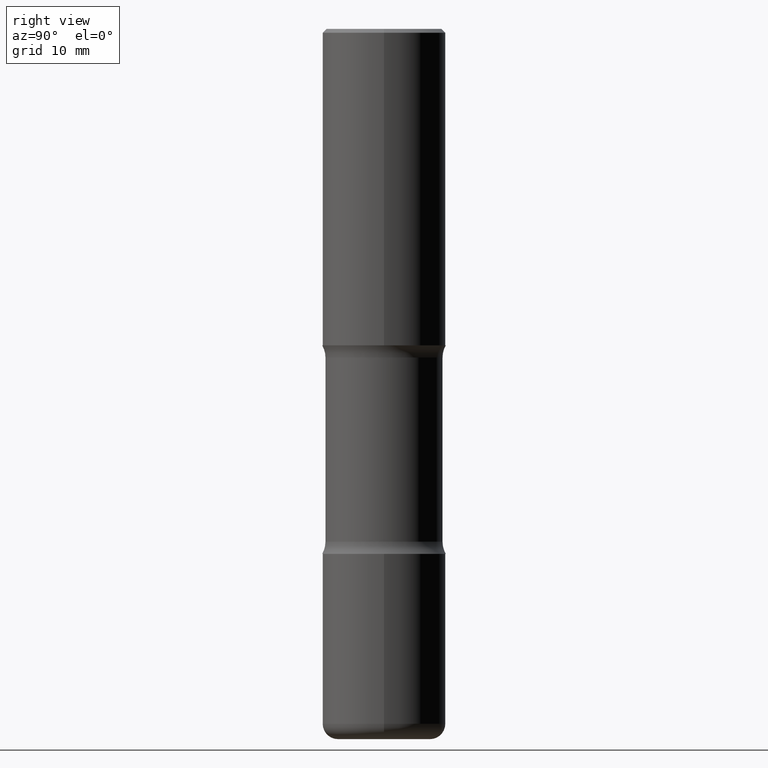
[diagram: clean part render]
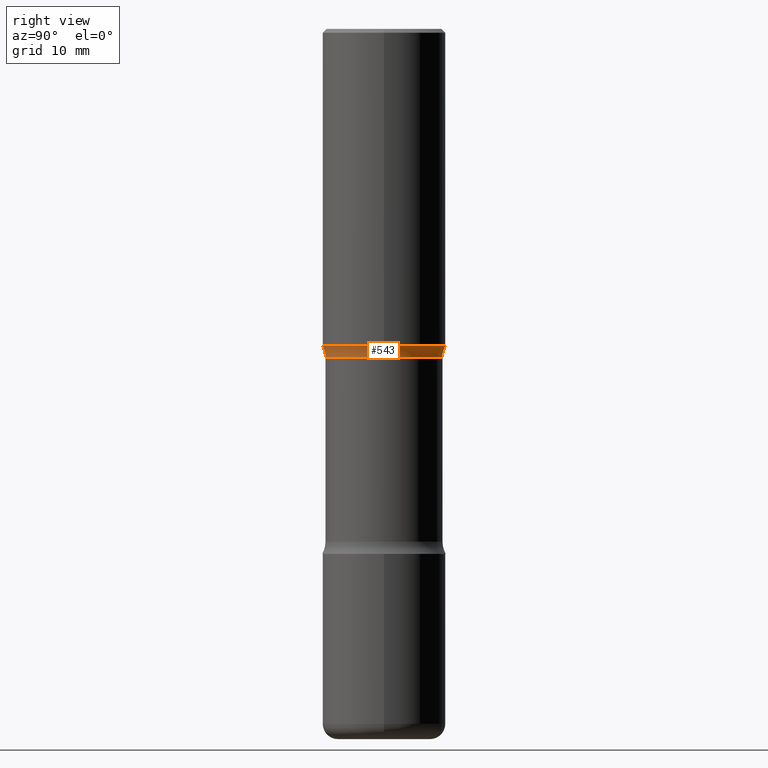
[diagram: same view with one face highlighted and labeled with its STEP entity id]
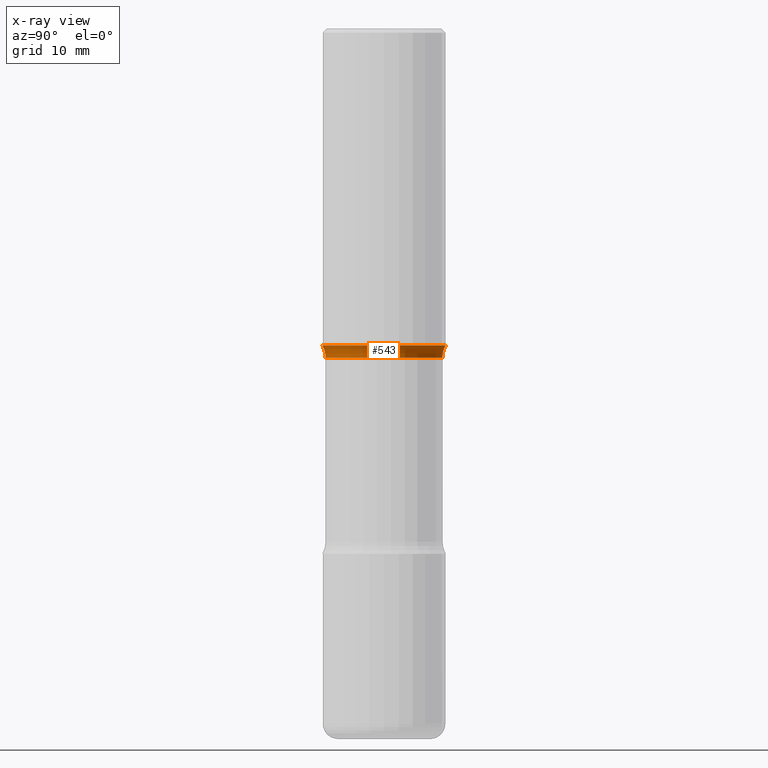
[diagram: x-ray of the same camera — body ghosted, the highlighted face saturated]
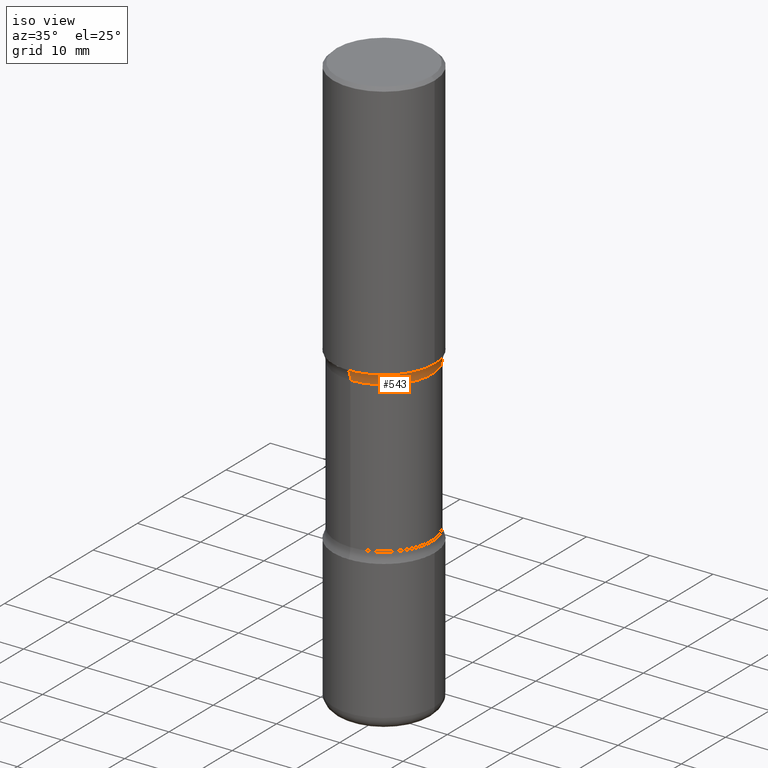
[diagram: same view with one face highlighted and labeled with its STEP entity id]
A machine part, right view. The second image highlights one B-rep face of the part: STEP entity #543.
The next image is the same camera in x-ray: the body ghosted, the highlighted face saturated — about 0% of this face is hidden behind the body in this view.
A second angle (iso view) of the same face is appended — the face is thin or edge-on in the first view.
In plain terms, the highlighted toroidal blend (fillet) surface has major radius 10.7569 mm and minor (blend) radius 3.175 mm.
Its self-contained STEP definition (entity closure, byte-faithful):
#11 = CIRCLE ( 'NONE', #474, 0.3149500000000002298 ) ;
#47 = CIRCLE ( 'NONE', #331, 0.1250000000000000000 ) ;
#88 = CARTESIAN_POINT ( 'NONE',  ( -2.160713844398106286E-15, -0.3149500000000058919, -1.614099999999999424 ) ) ;
#93 = VERTEX_POINT ( 'NONE', #345 ) ;
#96 = EDGE_CURVE ( 'NONE', #93, #282, #287, .T. ) ;
#100 = DIRECTION ( 'NONE',  ( 6.982962677686266711E-15, 1.000000000000000000, -3.660767830705881533E-15 ) ) ;
#130 = EDGE_CURVE ( 'NONE', #435, #93, #181, .T. ) ;
#144 = AXIS2_PLACEMENT_3D ( 'NONE', #263, #150, #540 ) ;
#147 = TOROIDAL_SURFACE ( 'NONE', #312, 0.4234999999999999321, 0.1250000000000000000 ) ;
#150 = DIRECTION ( 'NONE',  ( 1.000000000000000000, -6.860497997771530774E-15, 4.841240155857558238E-29 ) ) ;
#169 = CARTESIAN_POINT ( 'NONE',  ( 4.051117814422036389E-29, -5.920308863460726837E-15, -1.676083042035706239 ) ) ;
#180 = ORIENTED_EDGE ( 'NONE', *, *, #130, .F. ) ;
#181 = CIRCLE ( 'NONE', #190, 0.2984999999999998765 ) ;
#190 = AXIS2_PLACEMENT_3D ( 'NONE', #315, #439, #100 ) ;
#214 = CARTESIAN_POINT ( 'NONE',  ( 3.920484348274944932E-29, -5.673903043124096265E-15, -1.614100000000000312 ) ) ;
#218 = ORIENTED_EDGE ( 'NONE', *, *, #319, .T. ) ;
#233 = CARTESIAN_POINT ( 'NONE',  ( 2.199284095337330103E-15, 0.3149499999999945676, -1.614100000000001423 ) ) ;
#237 = DIRECTION ( 'NONE',  ( -6.982962677686266711E-15, -1.000000000000000000, 0.000000000000000000 ) ) ;
#263 = CARTESIAN_POINT ( 'NONE',  ( -2.905420902056202653E-15, -0.4235000000000058717, -1.676083042035704684 ) ) ;
#282 = VERTEX_POINT ( 'NONE', #88 ) ;
#287 = CIRCLE ( 'NONE', #144, 0.1250000000000000000 ) ;
#295 = VERTEX_POINT ( 'NONE', #233 ) ;
#299 = DIRECTION ( 'NONE',  ( 2.470630472966402250E-29, -3.455448399899237676E-15, -1.000000000000000000 ) ) ;
#312 = AXIS2_PLACEMENT_3D ( 'NONE', #169, #299, #371 ) ;
#315 = CARTESIAN_POINT ( 'NONE',  ( 4.073621540735516440E-29, -5.888082246547263507E-15, -1.676083042035706239 ) ) ;
#319 = EDGE_CURVE ( 'NONE', #435, #295, #47, .T. ) ;
#331 = AXIS2_PLACEMENT_3D ( 'NONE', #420, #457, #237 ) ;
#334 = ORIENTED_EDGE ( 'NONE', *, *, #96, .F. ) ;
#343 = ORIENTED_EDGE ( 'NONE', *, *, #410, .T. ) ;
#345 = CARTESIAN_POINT ( 'NONE',  ( -2.104286248366433550E-15, -0.2985000000000057607, -1.676083042035705128 ) ) ;
#371 = DIRECTION ( 'NONE',  ( 6.982962677686265922E-15, 1.000000000000000000, -3.455448399899237676E-15 ) ) ;
#377 = DIRECTION ( 'NONE',  ( 2.470630472966402250E-29, -3.455448399899237676E-15, -1.000000000000000000 ) ) ;
#410 = EDGE_CURVE ( 'NONE', #295, #282, #11, .T. ) ;
#420 = CARTESIAN_POINT ( 'NONE',  ( 2.957284694000173774E-15, 0.4234999999999939924, -1.676083042035707571 ) ) ;
#421 = FACE_OUTER_BOUND ( 'NONE', #546, .T. ) ;
#435 = VERTEX_POINT ( 'NONE', #551 ) ;
#439 = DIRECTION ( 'NONE',  ( 2.470630472966402250E-29, -3.455448399899237676E-15, -1.000000000000000000 ) ) ;
#457 = DIRECTION ( 'NONE',  ( -1.000000000000000000, 6.982962677686265922E-15, -4.883557194083112340E-29 ) ) ;
#474 = AXIS2_PLACEMENT_3D ( 'NONE', #214, #377, #560 ) ;
#540 = DIRECTION ( 'NONE',  ( 6.860497997771529985E-15, 1.000000000000000000, 0.000000000000000000 ) ) ;
#543 = ADVANCED_FACE ( 'NONE', ( #421 ), #147, .F. ) ;
#546 = EDGE_LOOP ( 'NONE', ( #334, #180, #218, #343 ) ) ;
#551 = CARTESIAN_POINT ( 'NONE',  ( 2.084414359289390435E-15, 0.2984999999999940479, -1.676083042035707127 ) ) ;
#560 = DIRECTION ( 'NONE',  ( 6.982962677686264344E-15, 1.000000000000000000, -3.469564049740290403E-15 ) ) ;